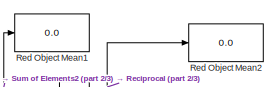
[diagram: root canvas - part 1/3, top center region]
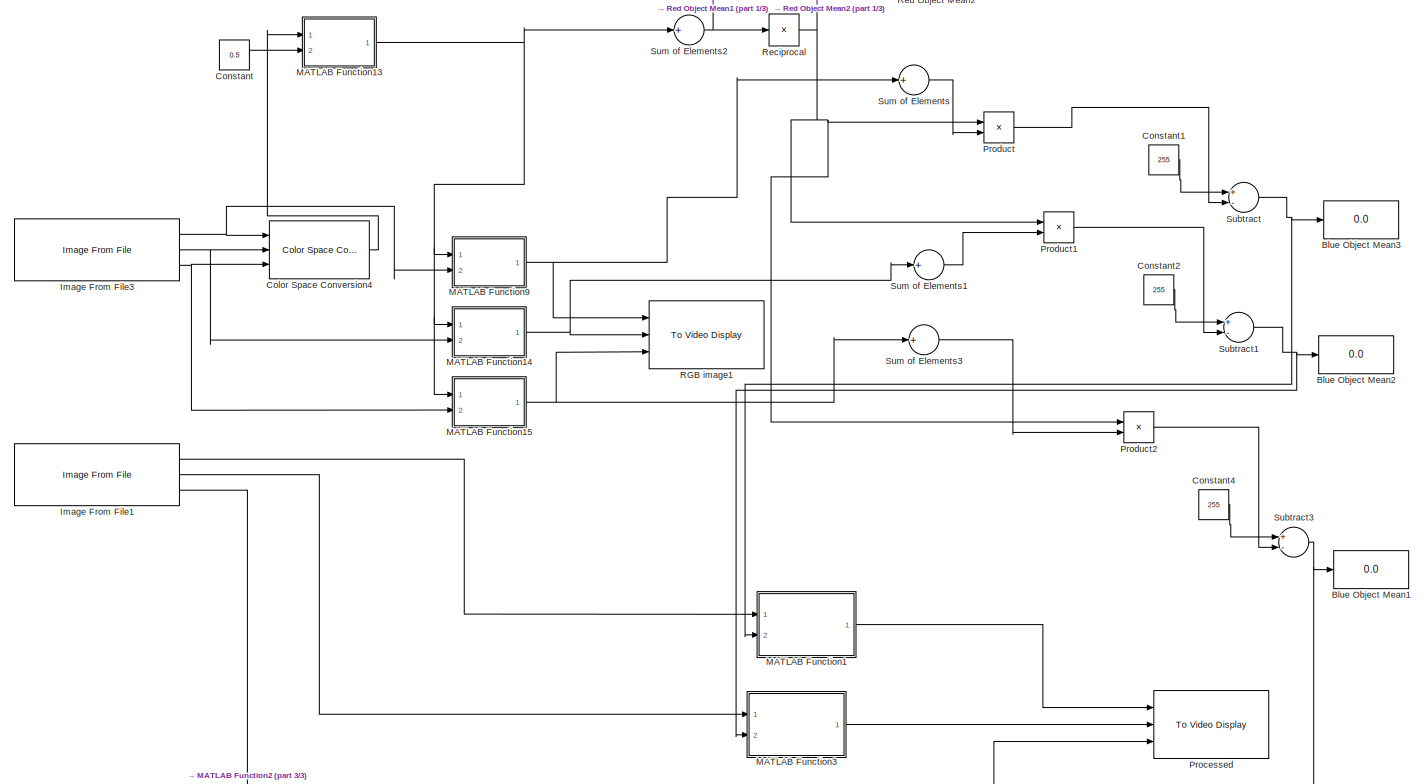
[diagram: root canvas - part 2/3, most of the canvas]
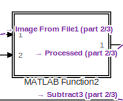
[diagram: root canvas - part 3/3, bottom center region]
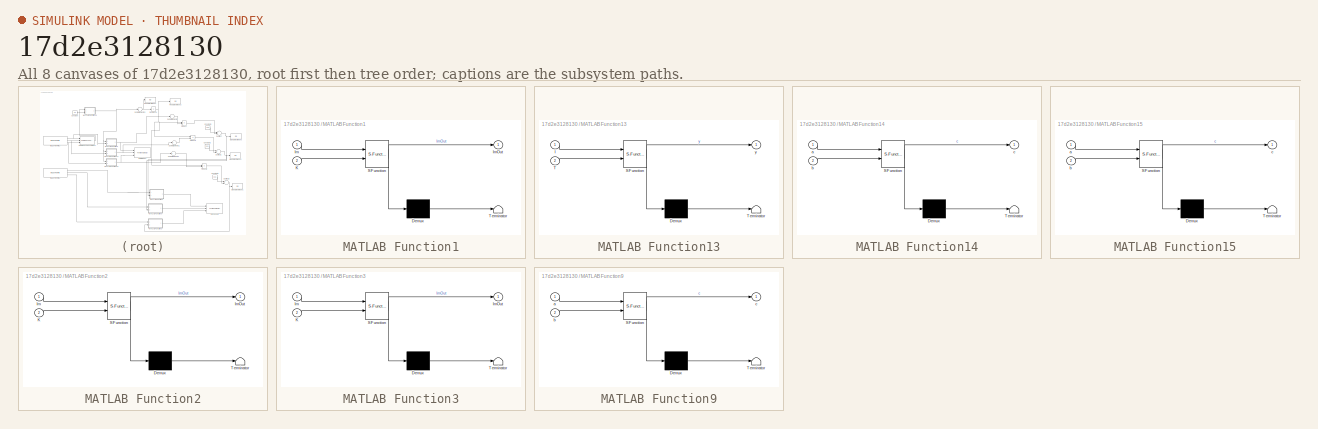
[diagram: thumbnail index - all 8 canvases of the model, root first then tree order]
MODEL slx_17d2e3128130
KIND model
CONFIG AbsTol = auto
CONFIG FixedStep = auto
CONFIG MaxStep = auto
CONFIG MinStep = auto
CONFIG RelTol = 1e-3
CONFIG SampleTimeConstraint = Unconstrained
CONFIG Solver = VariableStepAuto
CONFIG SolverMode = Auto
CONFIG SolverName = VariableStepAuto
CONFIG StartTime = 0.0
CONFIG StopTime = 10.0
BLOCK [Display] Blue Object Mean1
  Decimation = 1
  Ports = [1]
BLOCK [Display] Blue Object Mean2
  Decimation = 1
  Ports = [1]
BLOCK [Display] Blue Object Mean3
  Decimation = 1
  Ports = [1]
BLOCK [Reference] Color Space Conversion4  REF=visionconversions/Color Space
 Conversion
  Ports = [3, 1]
  SourceBlock = visionconversions/Color Space\n Conversion
  SourceType = Color Space Conversion
BLOCK [Constant] Constant
  SampleTime = 1
  Value = 0.5
BLOCK [Constant] Constant1
  Value = 255
BLOCK [Constant] Constant2
  Value = 255
BLOCK [Constant] Constant4
  Value = 255
BLOCK [Reference] Image From File1  REF=visionsources/Image From File
  Ports = [0, 3]
  SourceBlock = visionsources/Image From File
  SourceType = Image From File
  Tag = vipblks_nd
BLOCK [Reference] Image From File3  REF=visionsources/Image From File
  Ports = [0, 3]
  SourceBlock = visionsources/Image From File
  SourceType = Image From File
  Tag = vipblks_nd
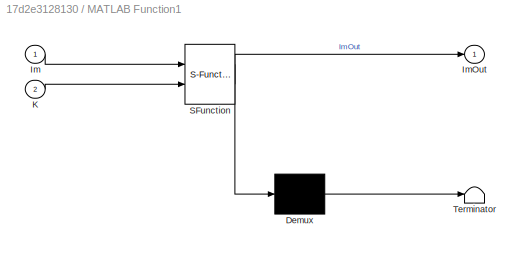
BLOCK [SubSystem] MATLAB Function1
  ErrorFcn = Stateflow.Translate.translate
  PermitHierarchicalResolution = ExplicitOnly
  Ports = [2, 1]
  RequestExecContextInheritance = off
  SFBlockType = MATLAB Function
  TreatAsAtomicUnit = on
  Variant = off
BLOCK [Demux] MATLAB Function1/ Demux 
  Outputs = 1
  Ports = [1, 1]
BLOCK [S-Function] MATLAB Function1/ SFunction 
  EnableBusSupport = on
  FunctionName = sf_sfun
  PortCounts = [2 2]
  Ports = [2, 2]
  SFunctionDeploymentMode = off
  Tag = Stateflow S-Function Color_Space_Conversion 1
BLOCK [Terminator] MATLAB Function1/ Terminator 
BLOCK [Inport] MATLAB Function1/Im
  IconDisplay = Port number
BLOCK [Outport] MATLAB Function1/ImOut
  IconDisplay = Port number
BLOCK [Inport] MATLAB Function1/K
  IconDisplay = Port number
  Port = 2
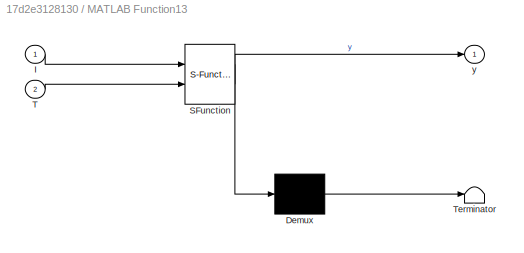
BLOCK [SubSystem] MATLAB Function13
  ErrorFcn = Stateflow.Translate.translate
  PermitHierarchicalResolution = ExplicitOnly
  Ports = [2, 1]
  RequestExecContextInheritance = off
  SFBlockType = MATLAB Function
  TreatAsAtomicUnit = on
  Variant = off
BLOCK [Demux] MATLAB Function13/ Demux 
  Outputs = 1
  Ports = [1, 1]
BLOCK [S-Function] MATLAB Function13/ SFunction 
  EnableBusSupport = on
  FunctionName = sf_sfun
  PortCounts = [2 2]
  Ports = [2, 2]
  SFunctionDeploymentMode = off
  Tag = Stateflow S-Function Color_Space_Conversion 14
BLOCK [Terminator] MATLAB Function13/ Terminator 
BLOCK [Inport] MATLAB Function13/I
  IconDisplay = Port number
BLOCK [Inport] MATLAB Function13/T
  IconDisplay = Port number
  Port = 2
BLOCK [Outport] MATLAB Function13/y
  IconDisplay = Port number
BLOCK [SubSystem] MATLAB Function14
  ErrorFcn = Stateflow.Translate.translate
  PermitHierarchicalResolution = ExplicitOnly
  Ports = [2, 1]
  RequestExecContextInheritance = off
  SFBlockType = MATLAB Function
  TreatAsAtomicUnit = on
  Variant = off
BLOCK [Demux] MATLAB Function14/ Demux 
  Outputs = 1
  Ports = [1, 1]
BLOCK [S-Function] MATLAB Function14/ SFunction 
  EnableBusSupport = on
  FunctionName = sf_sfun
  PortCounts = [2 2]
  Ports = [2, 2]
  SFunctionDeploymentMode = off
  Tag = Stateflow S-Function Color_Space_Conversion 10
BLOCK [Terminator] MATLAB Function14/ Terminator 
BLOCK [Inport] MATLAB Function14/a
  IconDisplay = Port number
BLOCK [Inport] MATLAB Function14/b
  IconDisplay = Port number
  Port = 2
BLOCK [Outport] MATLAB Function14/c
  IconDisplay = Port number
BLOCK [SubSystem] MATLAB Function15
  ErrorFcn = Stateflow.Translate.translate
  PermitHierarchicalResolution = ExplicitOnly
  Ports = [2, 1]
  RequestExecContextInheritance = off
  SFBlockType = MATLAB Function
  TreatAsAtomicUnit = on
  Variant = off
BLOCK [Demux] MATLAB Function15/ Demux 
  Outputs = 1
  Ports = [1, 1]
BLOCK [S-Function] MATLAB Function15/ SFunction 
  EnableBusSupport = on
  FunctionName = sf_sfun
  PortCounts = [2 2]
  Ports = [2, 2]
  SFunctionDeploymentMode = off
  Tag = Stateflow S-Function Color_Space_Conversion 15
BLOCK [Terminator] MATLAB Function15/ Terminator 
BLOCK [Inport] MATLAB Function15/a
  IconDisplay = Port number
BLOCK [Inport] MATLAB Function15/b
  IconDisplay = Port number
  Port = 2
BLOCK [Outport] MATLAB Function15/c
  IconDisplay = Port number
BLOCK [SubSystem] MATLAB Function2
  ErrorFcn = Stateflow.Translate.translate
  PermitHierarchicalResolution = ExplicitOnly
  Ports = [2, 1]
  RequestExecContextInheritance = off
  SFBlockType = MATLAB Function
  TreatAsAtomicUnit = on
  Variant = off
BLOCK [Demux] MATLAB Function2/ Demux 
  Outputs = 1
  Ports = [1, 1]
BLOCK [S-Function] MATLAB Function2/ SFunction 
  EnableBusSupport = on
  FunctionName = sf_sfun
  PortCounts = [2 2]
  Ports = [2, 2]
  SFunctionDeploymentMode = off
  Tag = Stateflow S-Function Color_Space_Conversion 2
BLOCK [Terminator] MATLAB Function2/ Terminator 
BLOCK [Inport] MATLAB Function2/Im
  IconDisplay = Port number
BLOCK [Outport] MATLAB Function2/ImOut
  IconDisplay = Port number
BLOCK [Inport] MATLAB Function2/K
  IconDisplay = Port number
  Port = 2
BLOCK [SubSystem] MATLAB Function3
  ErrorFcn = Stateflow.Translate.translate
  PermitHierarchicalResolution = ExplicitOnly
  Ports = [2, 1]
  RequestExecContextInheritance = off
  SFBlockType = MATLAB Function
  TreatAsAtomicUnit = on
  Variant = off
BLOCK [Demux] MATLAB Function3/ Demux 
  Outputs = 1
  Ports = [1, 1]
BLOCK [S-Function] MATLAB Function3/ SFunction 
  EnableBusSupport = on
  FunctionName = sf_sfun
  PortCounts = [2 2]
  Ports = [2, 2]
  SFunctionDeploymentMode = off
  Tag = Stateflow S-Function Color_Space_Conversion 3
BLOCK [Terminator] MATLAB Function3/ Terminator 
BLOCK [Inport] MATLAB Function3/Im
  IconDisplay = Port number
BLOCK [Outport] MATLAB Function3/ImOut
  IconDisplay = Port number
BLOCK [Inport] MATLAB Function3/K
  IconDisplay = Port number
  Port = 2
BLOCK [SubSystem] MATLAB Function9
  ErrorFcn = Stateflow.Translate.translate
  PermitHierarchicalResolution = ExplicitOnly
  Ports = [2, 1]
  RequestExecContextInheritance = off
  SFBlockType = MATLAB Function
  TreatAsAtomicUnit = on
  Variant = off
BLOCK [Demux] MATLAB Function9/ Demux 
  Outputs = 1
  Ports = [1, 1]
BLOCK [S-Function] MATLAB Function9/ SFunction 
  EnableBusSupport = on
  FunctionName = sf_sfun
  PortCounts = [2 2]
  Ports = [2, 2]
  SFunctionDeploymentMode = off
  Tag = Stateflow S-Function Color_Space_Conversion 16
BLOCK [Terminator] MATLAB Function9/ Terminator 
BLOCK [Inport] MATLAB Function9/a
  IconDisplay = Port number
BLOCK [Inport] MATLAB Function9/b
  IconDisplay = Port number
  Port = 2
BLOCK [Outport] MATLAB Function9/c
  IconDisplay = Port number
BLOCK [Reference] Processed  REF=visionsinks/To Video Display
  Ports = [3]
  SourceBlock = visionsinks/To Video Display
  SourceType = To Video Display
BLOCK [Product] Product
  InputSameDT = off
  OutDataTypeStr = uint8
  Ports = [2, 1]
  RndMeth = Floor
  SaturateOnIntegerOverflow = off
BLOCK [Product] Product1
  InputSameDT = off
  OutDataTypeStr = uint8
  Ports = [2, 1]
  RndMeth = Floor
  SaturateOnIntegerOverflow = off
BLOCK [Product] Product2
  InputSameDT = off
  OutDataTypeStr = uint8
  Ports = [2, 1]
  RndMeth = Floor
  SaturateOnIntegerOverflow = off
BLOCK [Reference] RGB image1  REF=visionsinks/To Video Display
  Ports = [3]
  SourceBlock = visionsinks/To Video Display
  SourceType = To Video Display
BLOCK [Product] Reciprocal
  InputSameDT = off
  Inputs = /
  OutDataTypeStr = double
  Ports = [1, 1]
BLOCK [Display] Red Object Mean1
  Decimation = 1
  Ports = [1]
BLOCK [Display] Red Object Mean2
  Decimation = 1
  Ports = [1]
BLOCK [Sum] Subtract
  InputSameDT = off
  Inputs = +-
  OutDataTypeStr = Inherit: Inherit via internal rule
  Ports = [2, 1]
  SaturateOnIntegerOverflow = off
BLOCK [Sum] Subtract1
  InputSameDT = off
  Inputs = +-
  OutDataTypeStr = Inherit: Inherit via internal rule
  Ports = [2, 1]
  SaturateOnIntegerOverflow = off
BLOCK [Sum] Subtract3
  InputSameDT = off
  Inputs = +-
  OutDataTypeStr = Inherit: Inherit via internal rule
  Ports = [2, 1]
  SaturateOnIntegerOverflow = off
BLOCK [Sum] Sum of Elements
  InputSameDT = off
  Inputs = +
  OutDataTypeStr = Inherit: Inherit via internal rule
  Ports = [1, 1]
  SaturateOnIntegerOverflow = off
BLOCK [Sum] Sum of Elements1
  InputSameDT = off
  Inputs = +
  OutDataTypeStr = Inherit: Inherit via internal rule
  Ports = [1, 1]
  SaturateOnIntegerOverflow = off
BLOCK [Sum] Sum of Elements2
  AccumDataTypeStr = uint8
  InputSameDT = off
  Inputs = +
  OutDataTypeStr = uint8
  Ports = [1, 1]
  SaturateOnIntegerOverflow = off
BLOCK [Sum] Sum of Elements3
  InputSameDT = off
  Inputs = +
  OutDataTypeStr = Inherit: Inherit via internal rule
  Ports = [1, 1]
  SaturateOnIntegerOverflow = off
LINE Color Space Conversion4:1 -> MATLAB Function13:1
LINE Constant1:1 -> Subtract:1
LINE Constant2:1 -> Subtract1:1
LINE Constant4:1 -> Subtract3:1
LINE Constant:1 -> MATLAB Function13:2
LINE Image From File1:1 -> MATLAB Function1:1
LINE Image From File1:2 -> MATLAB Function3:1
LINE Image From File1:3 -> MATLAB Function2:1
NET Image From File3:1 -> Color Space Conversion4:1, MATLAB Function9:2
NET Image From File3:2 -> Color Space Conversion4:2, MATLAB Function14:2
NET Image From File3:3 -> Color Space Conversion4:3, MATLAB Function15:2
NET MATLAB Function13:1 -> MATLAB Function14:1, MATLAB Function15:1, MATLAB Function9:1, Sum of Elements2:1
NET MATLAB Function14:1 -> RGB image1:2, Sum of Elements1:1
NET MATLAB Function15:1 -> RGB image1:3, Sum of Elements3:1
LINE MATLAB Function1:1 -> Processed:1
LINE MATLAB Function2:1 -> Processed:3
LINE MATLAB Function3:1 -> Processed:2
NET MATLAB Function9:1 -> RGB image1:1, Sum of Elements:1
LINE Product1:1 -> Subtract1:2
LINE Product2:1 -> Subtract3:2
LINE Product:1 -> Subtract:2
NET Reciprocal:1 -> Product1:1, Product2:1, Product:1, Red Object Mean2:1
NET Subtract1:1 -> Blue Object Mean2:1, MATLAB Function3:2
NET Subtract3:1 -> Blue Object Mean1:1, MATLAB Function2:2
NET Subtract:1 -> Blue Object Mean3:1, MATLAB Function1:2
LINE Sum of Elements1:1 -> Product1:2
NET Sum of Elements2:1 -> Reciprocal:1, Red Object Mean1:1
LINE Sum of Elements3:1 -> Product2:2
LINE Sum of Elements:1 -> Product:2
note: NET lines group one-source signal fan-out (src -> all destinations, sorted); 1:1 wires keep LINE
CHART MATLAB Function1 states=1 transitions=1
  STATE_LABEL 'eML_blk_kernel()'
  STATE_LABEL "SCRIPT:\nfunction ImOut = fcn(Im,K)\n%#codegen\ncoder.extrinsic('imadd');\nImOut =Im;\nImOut=imadd(Im,K);\nreturn"
CHART MATLAB Function2 states=1 transitions=1
  STATE_LABEL 'eML_blk_kernel()'
  STATE_LABEL "SCRIPT:\nfunction ImOut = fcn(Im,K)\n%#codegen\ncoder.extrinsic('imadd');\nImOut =Im;\nImOut=imadd(Im,K);\nreturn"
CHART MATLAB Function3 states=1 transitions=1
  STATE_LABEL 'eML_blk_kernel()'
  STATE_LABEL "SCRIPT:\nfunction ImOut = fcn(Im,K)\n%#codegen\ncoder.extrinsic('imadd');\nImOut =Im;\nImOut=imadd(Im,K);\nreturn"
CHART MATLAB Function14 states=1 transitions=1
  STATE_LABEL 'eML_blk_kernel()'
  STATE_LABEL 'SCRIPT:\nfunction c = fcn(a,b)\n%#codegen\nc=a.*b;\nreturn'
CHART MATLAB Function13 states=1 transitions=1
  STATE_LABEL 'eML_blk_kernel()'
  STATE_LABEL 'SCRIPT:\nfunction y = fcn(I,T)\n%#codegen\nBW = imbinarize(I,T);\ny = BW;'
CHART MATLAB Function15 states=1 transitions=1
  STATE_LABEL 'eML_blk_kernel()'
  STATE_LABEL 'SCRIPT:\nfunction c = fcn(a,b)\n%#codegen\nc=a.*b;\nreturn'
CHART MATLAB Function9 states=1 transitions=1
  STATE_LABEL 'eML_blk_kernel()'
  STATE_LABEL 'SCRIPT:\nfunction c = fcn(a,b)\n%#codegen\nc=a.*b;\nreturn'
